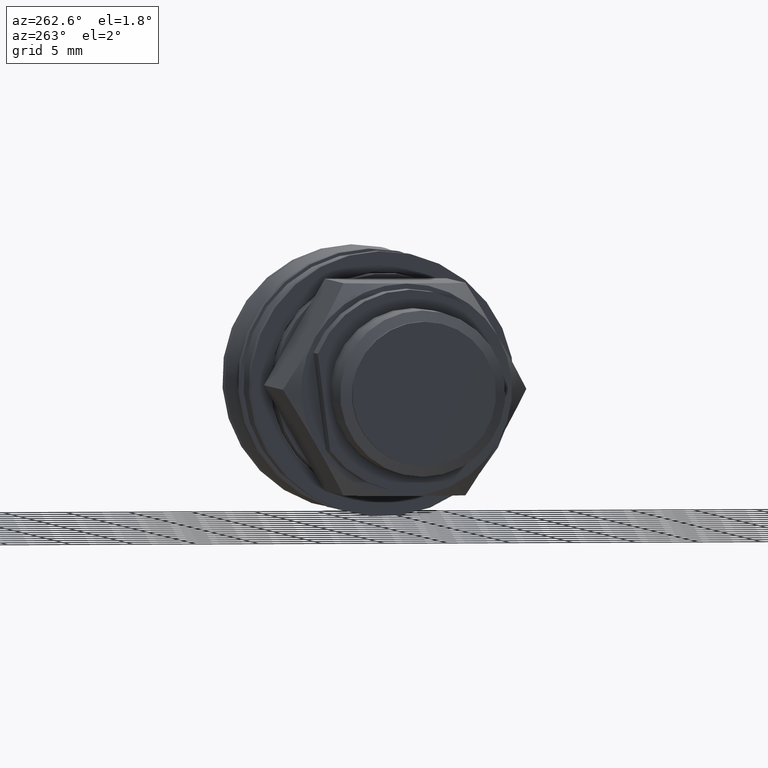
[diagram: clean part render]
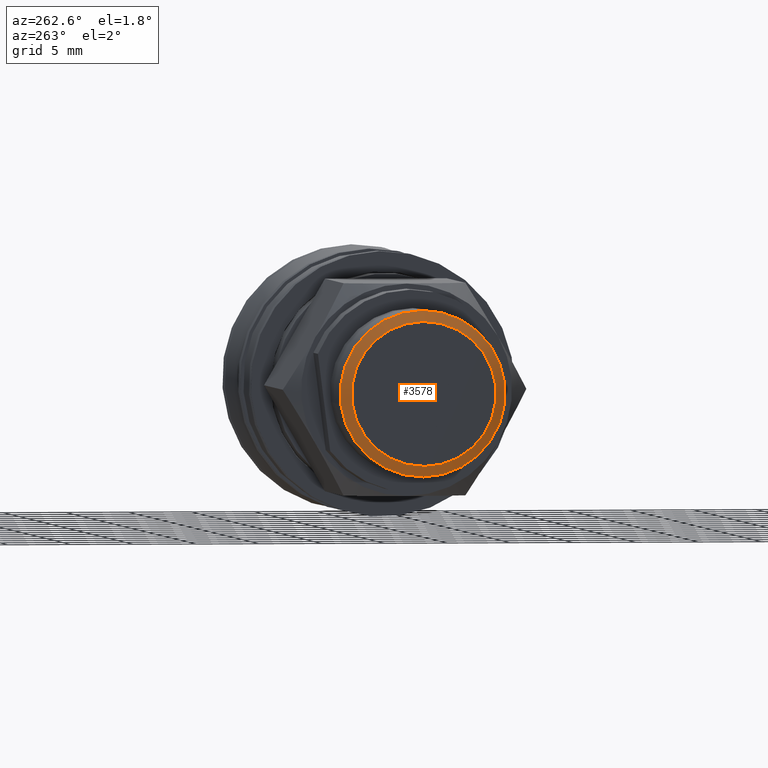
[diagram: same view with one face highlighted and labeled with its STEP entity id]
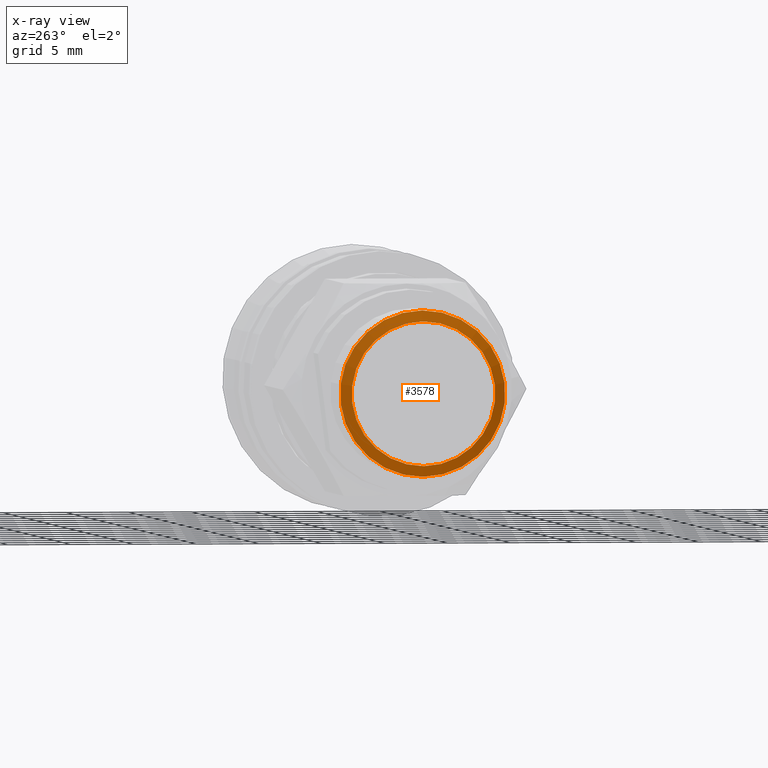
[diagram: x-ray of the same camera — body ghosted, the highlighted face saturated]
A machine part, auxiliary view. The second image highlights one B-rep face of the part: STEP entity #3578.
The next image is the same camera in x-ray: the body ghosted, the highlighted face saturated — about 0% of this face is hidden behind the body in this view.
In plain terms, the highlighted conical surface has half-angle 62.5 deg.
Its self-contained STEP definition (entity closure, byte-faithful):
#3547=CARTESIAN_POINT('',(-10.299999999999992,5.676655220582333,-0.722905081345639));
#3548=VERTEX_POINT('',#3547);
#3549=CARTESIAN_POINT('',(-10.299999999999992,0.0,0.0));
#3550=DIRECTION('',(-1.0,0.0,0.0));
#3551=DIRECTION('',(0.0,0.991988679874589,-0.126326794468439));
#3552=AXIS2_PLACEMENT_3D('',#3549,#3550,#3551);
#3553=CIRCLE('',#3552,5.722499999999999);
#3554=EDGE_CURVE('',#3548,#3548,#3553,.T.);
#3559=CARTESIAN_POINT('',(-10.077197302363846,0.0,0.0));
#3560=DIRECTION('',(1.0,0.0,0.0));
#3561=DIRECTION('',(0.0,0.991988679874589,-0.126326794468439));
#3562=AXIS2_PLACEMENT_3D('',#3559,#3560,#3561);
#3563=CONICAL_SURFACE('',#3562,6.150499999999999,62.500000000000107);
#3564=ORIENTED_EDGE('',*,*,#3554,.F.);
#3565=EDGE_LOOP('',(#3564));
#3566=FACE_OUTER_BOUND('',#3565,.T.);
#3567=CARTESIAN_POINT('',(-9.854394604727698,6.525797530554981,-0.831040817410623));
#3568=VERTEX_POINT('',#3567);
#3569=CARTESIAN_POINT('',(-9.854394604727698,0.0,0.0));
#3570=DIRECTION('',(-1.0,0.0,0.0));
#3571=DIRECTION('',(0.0,0.991988679874589,-0.126326794468439));
#3572=AXIS2_PLACEMENT_3D('',#3569,#3570,#3571);
#3573=CIRCLE('',#3572,6.5785);
#3574=EDGE_CURVE('',#3568,#3568,#3573,.T.);
#3575=ORIENTED_EDGE('',*,*,#3574,.T.);
#3576=EDGE_LOOP('',(#3575));
#3577=FACE_BOUND('',#3576,.T.);
#3578=ADVANCED_FACE('',(#3566,#3577),#3563,.T.);